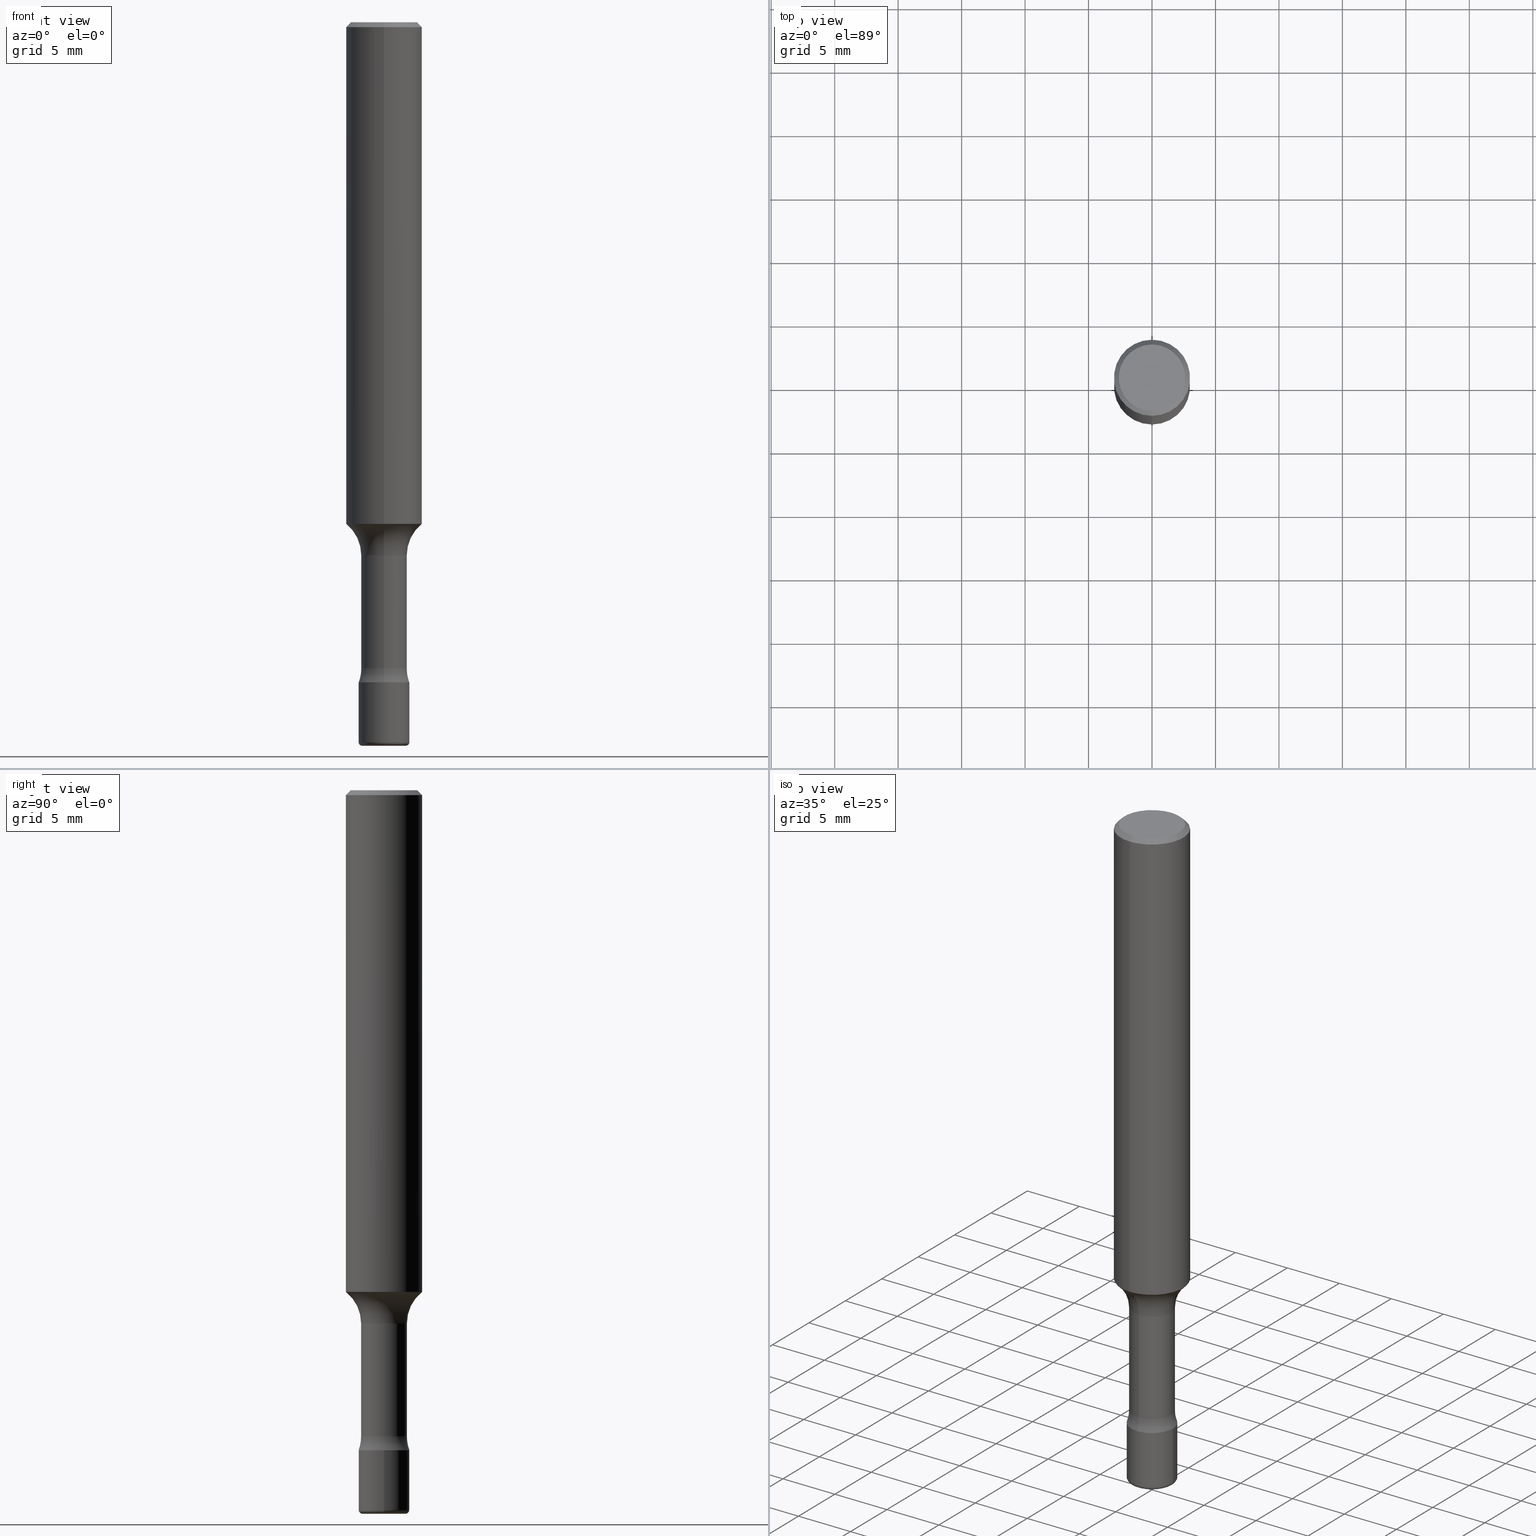
[diagram: canonical four-view strip — front | top / right | iso, engineering-drawing reading convention]
A machine part, canonical four-view strip (front | top / right | iso — engineering-drawing reading convention). The complete STEP part file that produces these views, byte-faithful:
ISO-10303-21;
HEADER;
FILE_DESCRIPTION (( 'STEP AP203' ),
    '1' );
FILE_NAME ('46561.STEP',
    '2024-03-04T12:38:47',
    ( '' ),
    ( '' ),
    'SwSTEP 2.0',
    'SolidWorks 2023',
    '' );
FILE_SCHEMA (( 'CONFIG_CONTROL_DESIGN' ));
ENDSEC;

DATA;
#1 = AXIS2_PLACEMENT_3D ( 'NONE', #417, #369, #49 ) ;
#2 = CARTESIAN_POINT ( 'NONE',  ( -4.957903501156845310E-16, -0.07100000000000578071, -1.653499999999999748 ) ) ;
#3 = ORIENTED_EDGE ( 'NONE', *, *, #216, .T. ) ;
#4 = CARTESIAN_POINT ( 'NONE',  ( 5.487876547960064752E-29, -7.835233272497900762E-15, -2.244099999999999540 ) ) ;
#5 = ORIENTED_EDGE ( 'NONE', *, *, #381, .T. ) ;
#6 = CARTESIAN_POINT ( 'NONE',  ( 4.042623480343631628E-29, -5.774538009429644609E-15, -1.653499999999999970 ) ) ;
#7 = DIRECTION ( 'NONE',  ( -2.445468806185136597E-29, 3.491481338843145583E-15, 1.000000000000000000 ) ) ;
#8 = DIRECTION ( 'NONE',  ( -1.000000000000000000, 7.105427357601038146E-15, 0.000000000000000000 ) ) ;
#9 = CARTESIAN_POINT ( 'NONE',  ( 4.042623480343631628E-29, -5.774538009429644609E-15, -1.653499999999999970 ) ) ;
#10 = CARTESIAN_POINT ( 'NONE',  ( 5.044853423896712842E-16, 0.07100000000000002143, 2.301192418489086903E-16 ) ) ;
#11 = CIRCLE ( 'NONE', #376, 0.01179999999999993381 ) ;
#12 =( NAMED_UNIT ( * ) SI_UNIT ( $, .STERADIAN. ) SOLID_ANGLE_UNIT ( ) );
#13 = APPROVAL_ROLE ( '' ) ;
#14 = DIRECTION ( 'NONE',  ( 1.000000000000000000, 0.000000000000000000, 0.000000000000000000 ) ) ;
#15 = CARTESIAN_POINT ( 'NONE',  ( 5.005176165079820518E-29, -7.149461271789760312E-15, -2.047200000000000131 ) ) ;
#16 = VECTOR ( 'NONE', #435, 39.37007874015748143 ) ;
#17 = DIRECTION ( 'NONE',  ( 0.000000000000000000, 0.000000000000000000, 1.000000000000000000 ) ) ;
#18 = DIRECTION ( 'NONE',  ( 7.105427357600999492E-15, 1.000000000000000000, 0.000000000000000000 ) ) ;
#19 = ORIENTED_EDGE ( 'NONE', *, *, #286, .F. ) ;
#20 = CARTESIAN_POINT ( 'NONE',  ( -1.169113584055446105E-44, 1.669184350826100908E-30, 4.780733988912460139E-16 ) ) ;
#21 = ORIENTED_EDGE ( 'NONE', *, *, #404, .T. ) ;
#22 = PERSON_AND_ORGANIZATION ( #496, #373 ) ;
#23 = CARTESIAN_POINT ( 'NONE',  ( 1.392663762089836453E-15, 0.1959999999999942066, -1.653500000000000858 ) ) ;
#24 = AXIS2_PLACEMENT_3D ( 'NONE', #308, #177, #412 ) ;
#25 = DIRECTION ( 'NONE',  ( -1.000000000000000000, 6.982962677686265922E-15, -4.883557194083112340E-29 ) ) ;
#26 = PRODUCT_DEFINITION_SHAPE ( 'NONE', 'NONE',  #336 ) ;
#27 = CARTESIAN_POINT ( 'NONE',  ( 3.803616507154480473E-29, -5.433137219098765341E-15, -1.555742187013006372 ) ) ;
#28 = ORIENTED_EDGE ( 'NONE', *, *, #212, .T. ) ;
#29 = FACE_OUTER_BOUND ( 'NONE', #517, .T. ) ;
#30 = APPROVAL_PERSON_ORGANIZATION ( #280, #391, #13 ) ;
#31 = ORIENTED_EDGE ( 'NONE', *, *, #312, .F. ) ;
#32 = DIRECTION ( 'NONE',  ( -2.444888709007337080E-29, 3.492312071018835321E-15, 1.000000000000000000 ) ) ;
#33 = ORIENTED_EDGE ( 'NONE', *, *, #94, .F. ) ;
#34 = DIRECTION ( 'NONE',  ( -6.982962677686265922E-15, -1.000000000000000000, 3.492312071018834927E-15 ) ) ;
#35 = AXIS2_PLACEMENT_3D ( 'NONE', #257, #219, #429 ) ;
#36 = ADVANCED_FACE ( 'NONE', ( #128 ), #287, .T. ) ;
#37 = LENGTH_MEASURE_WITH_UNIT ( LENGTH_MEASURE( 0.02539999999999999897 ), #295 );
#38 = ORIENTED_EDGE ( 'NONE', *, *, #137, .T. ) ;
#39 = CIRCLE ( 'NONE', #117, 0.1250000000000000000 ) ;
#40 = EDGE_CURVE ( 'NONE', #430, #504, #486, .T. ) ;
#41 = ORIENTED_EDGE ( 'NONE', *, *, #216, .F. ) ;
#42 = AXIS2_PLACEMENT_3D ( 'NONE', #333, #487, #368 ) ;
#43 = DIRECTION ( 'NONE',  ( -6.982962677686265922E-15, -1.000000000000000000, 3.847673230513046609E-15 ) ) ;
#44 = AXIS2_PLACEMENT_3D ( 'NONE', #353, #188, #401 ) ;
#45 = CIRCLE ( 'NONE', #290, 0.06694999999999998175 ) ;
#46 = LINE ( 'NONE', #254, #392 ) ;
#47 = CIRCLE ( 'NONE', #341, 0.01179999999999993381 ) ;
#48 = DIRECTION ( 'NONE',  ( -2.444888709007337080E-29, 3.492312071018835321E-15, 1.000000000000000000 ) ) ;
#49 = DIRECTION ( 'NONE',  ( -1.000000000000000000, 6.982962677686265922E-15, -4.876176775795935793E-29 ) ) ;
#50 = CARTESIAN_POINT ( 'NONE',  ( 4.900403027122825757E-29, -6.996476781358096065E-15, -2.003870593126607424 ) ) ;
#51 = AXIS2_PLACEMENT_3D ( 'NONE', #178, #431, #267 ) ;
#52 = DIRECTION ( 'NONE',  ( 1.000000000000000000, -6.982962677686257244E-15, 0.000000000000000000 ) ) ;
#53 = PERSON_AND_ORGANIZATION ( #496, #373 ) ;
#54 = ADVANCED_FACE ( 'NONE', ( #132 ), #142, .T. ) ;
#55 = APPROVAL_ROLE ( '' ) ;
#56 = DIRECTION ( 'NONE',  ( -2.445468806185136877E-29, 3.491481338843145188E-15, 1.000000000000000000 ) ) ;
#57 = CARTESIAN_POINT ( 'NONE',  ( 0.000000000000000000, 0.000000000000000000, 0.000000000000000000 ) ) ;
#58 = CARTESIAN_POINT ( 'NONE',  ( -8.102248135368174406E-16, -0.1181000000000000522, -0.01499999999999989189 ) ) ;
#59 = AXIS2_PLACEMENT_3D ( 'NONE', #9, #445, #326 ) ;
#60 = ORIENTED_EDGE ( 'NONE', *, *, #260, .F. ) ;
#61 = DIRECTION ( 'NONE',  ( -2.445468806185136597E-29, 3.491481338843145583E-15, 1.000000000000000000 ) ) ;
#62 = ORIENTED_EDGE ( 'NONE', *, *, #101, .T. ) ;
#63 = CALENDAR_DATE ( 2024, 4, 3 ) ;
#64 = DIRECTION ( 'NONE',  ( -6.982962677686265922E-15, -1.000000000000000000, 3.487819265831411744E-15 ) ) ;
#65 = COORDINATED_UNIVERSAL_TIME_OFFSET ( 5, 0, .BEHIND. ) ;
#66 = DIRECTION ( 'NONE',  ( 1.000000000000000000, -7.105427357601001070E-15, 4.926325682077081619E-29 ) ) ;
#67 = CIRCLE ( 'NONE', #411, 0.07875000000000000056 ) ;
#68 = FACE_OUTER_BOUND ( 'NONE', #77, .T. ) ;
#69 = CC_DESIGN_PERSON_AND_ORGANIZATION_ASSIGNMENT ( #250, #172, ( #258 ) ) ;
#70 = PLANE ( 'NONE',  #148 ) ;
#71 = APPLICATION_CONTEXT ( 'configuration controlled 3d designs of mechanical parts and assemblies' ) ;
#72 = EDGE_LOOP ( 'NONE', ( #221, #144 ) ) ;
#73 = PLANE ( 'NONE',  #44 ) ;
#74 = EDGE_CURVE ( 'NONE', #200, #461, #95, .T. ) ;
#75 = ORIENTED_EDGE ( 'NONE', *, *, #137, .F. ) ;
#76 = DIRECTION ( 'NONE',  ( 6.982962677686265922E-15, 1.000000000000000000, -3.487819265831411744E-15 ) ) ;
#77 = EDGE_LOOP ( 'NONE', ( #41, #409, #62, #457 ) ) ;
#78 = FACE_OUTER_BOUND ( 'NONE', #72, .T. ) ;
#79 = CIRCLE ( 'NONE', #310, 0.1250000000000000000 ) ;
#80 = ORIENTED_EDGE ( 'NONE', *, *, #362, .F. ) ;
#81 = DIRECTION ( 'NONE',  ( 1.000000000000000000, -6.982962677686261977E-15, 0.000000000000000000 ) ) ;
#82 = EDGE_CURVE ( 'NONE', #115, #240, #46, .T. ) ;
#83 = LINE ( 'NONE', #408, #379 ) ;
#84 = EDGE_LOOP ( 'NONE', ( #31, #315, #356, #259 ) ) ;
#85 = LOCAL_TIME ( 7, 38, 47.00000000000000000, #331 ) ;
#86 = DIRECTION ( 'NONE',  ( 6.982962677686265922E-15, 1.000000000000000000, -3.487819265831411744E-15 ) ) ;
#87 = PERSON_AND_ORGANIZATION_ROLE ( 'design_supplier' ) ;
#88 = ORIENTED_EDGE ( 'NONE', *, *, #377, .F. ) ;
#89 = AXIS2_PLACEMENT_3D ( 'NONE', #145, #102, #64 ) ;
#90 = DIRECTION ( 'NONE',  ( -2.444888709007337080E-29, 3.492312071018835321E-15, 1.000000000000000000 ) ) ;
#91 = COORDINATED_UNIVERSAL_TIME_OFFSET ( 5, 0, .BEHIND. ) ;
#92 = DIRECTION ( 'NONE',  ( -2.444888709007337080E-29, 3.492312071018835321E-15, 1.000000000000000000 ) ) ;
#93 = APPLICATION_PROTOCOL_DEFINITION ( 'international standard', 'config_control_design', 1994, #399 ) ;
#94 = EDGE_CURVE ( 'NONE', #115, #446, #67, .T. ) ;
#95 = CIRCLE ( 'NONE', #300, 0.06694999999999998175 ) ;
#96 = VECTOR ( 'NONE', #92, 39.37007874015748143 ) ;
#97 = PERSON_AND_ORGANIZATION ( #496, #373 ) ;
#98 = ORIENTED_EDGE ( 'NONE', *, *, #424, .T. ) ;
#99 = DIRECTION ( 'NONE',  ( -2.444888709007337080E-29, 3.492312071018835321E-15, 1.000000000000000000 ) ) ;
#100 = DIRECTION ( 'NONE',  ( -2.445468806185136597E-29, 3.491481338843145583E-15, 1.000000000000000000 ) ) ;
#101 = EDGE_CURVE ( 'NONE', #441, #122, #138, .T. ) ;
#102 = DIRECTION ( 'NONE',  ( -2.444888709007337080E-29, 3.492312071018835321E-15, 1.000000000000000000 ) ) ;
#103 =( GEOMETRIC_REPRESENTATION_CONTEXT ( 3 ) GLOBAL_UNCERTAINTY_ASSIGNED_CONTEXT ( ( #299 ) ) GLOBAL_UNIT_ASSIGNED_CONTEXT ( ( #195, #451, #12 ) ) REPRESENTATION_CONTEXT ( 'NONE', 'WORKASPACE' ) );
#104 = EDGE_LOOP ( 'NONE', ( #478, #38, #439, #327 ) ) ;
#105 = DIRECTION ( 'NONE',  ( -2.444888709007337080E-29, 3.492312071018835321E-15, 1.000000000000000000 ) ) ;
#106 = ORIENTED_EDGE ( 'NONE', *, *, #305, .F. ) ;
#107 = DIRECTION ( 'NONE',  ( -4.851104656540962697E-15, -0.7071067811865497932, -0.7071067811865452413 ) ) ;
#108 = CC_DESIGN_PERSON_AND_ORGANIZATION_ASSIGNMENT ( #97, #428, ( #506 ) ) ;
#109 = CALENDAR_DATE ( 2024, 4, 3 ) ;
#110 = CC_DESIGN_APPROVAL ( #359, ( #258 ) ) ;
#111 = AXIS2_PLACEMENT_3D ( 'NONE', #119, #116, #468 ) ;
#112 = ORIENTED_EDGE ( 'NONE', *, *, #407, .T. ) ;
#113 = CARTESIAN_POINT ( 'NONE',  ( 7.401769420960591620E-45, -1.058072037980263968E-30, -3.028580680983933068E-16 ) ) ;
#114 = ADVANCED_FACE ( 'NONE', ( #303 ), #455, .T. ) ;
#115 = VERTEX_POINT ( 'NONE', #426 ) ;
#116 = DIRECTION ( 'NONE',  ( -2.445468806185136597E-29, 3.491481338843145583E-15, 1.000000000000000000 ) ) ;
#117 = AXIS2_PLACEMENT_3D ( 'NONE', #146, #351, #507 ) ;
#118 = VERTEX_POINT ( 'NONE', #275 ) ;
#119 = CARTESIAN_POINT ( 'NONE',  ( 5.459020016047079569E-29, -7.794033792699553278E-15, -2.232299999999999951 ) ) ;
#120 = ADVANCED_FACE ( 'NONE', ( #440 ), #73, .F. ) ;
#121 = CIRCLE ( 'NONE', #477, 0.07100000000000000755 ) ;
#122 = VERTEX_POINT ( 'NONE', #406 ) ;
#123 = CARTESIAN_POINT ( 'NONE',  ( 5.459020016047079569E-29, -7.794033792699553278E-15, -2.232299999999999951 ) ) ;
#124 = ADVANCED_FACE ( 'NONE', ( #194 ), #338, .T. ) ;
#125 = ORIENTED_EDGE ( 'NONE', *, *, #375, .F. ) ;
#126 = DIRECTION ( 'NONE',  ( -2.445468806185136597E-29, 3.491481338843145583E-15, 1.000000000000000000 ) ) ;
#127 = DIMENSIONAL_EXPONENTS ( 1.000000000000000000, 0.000000000000000000, 0.000000000000000000, 0.000000000000000000, 0.000000000000000000, 0.000000000000000000, 0.000000000000000000 ) ;
#128 = FACE_OUTER_BOUND ( 'NONE', #382, .T. ) ;
#129 = APPROVAL_PERSON_ORGANIZATION ( #298, #519, #55 ) ;
#130 = DIRECTION ( 'NONE',  ( -6.982962677686265922E-15, -1.000000000000000000, 3.492312071018835321E-15 ) ) ;
#131 = DATE_AND_TIME ( #339, #85 ) ;
#132 = FACE_OUTER_BOUND ( 'NONE', #317, .T. ) ;
#133 = FACE_OUTER_BOUND ( 'NONE', #400, .T. ) ;
#134 = ADVANCED_FACE ( 'NONE', ( #475 ), #175, .F. ) ;
#135 = DATE_AND_TIME ( #493, #314 ) ;
#136 = AXIS2_PLACEMENT_3D ( 'NONE', #20, #143, #185 ) ;
#137 = EDGE_CURVE ( 'NONE', #446, #223, #316, .T. ) ;
#138 = CIRCLE ( 'NONE', #201, 0.07875000000000000056 ) ;
#139 = DIRECTION ( 'NONE',  ( -2.444888709007337080E-29, 3.492312071018835321E-15, 1.000000000000000000 ) ) ;
#140 = CARTESIAN_POINT ( 'NONE',  ( -4.957903501157250587E-16, -0.07100000000000002143, 7.260275559335834854E-16 ) ) ;
#141 = DIRECTION ( 'NONE',  ( -2.444888709007337080E-29, 3.492312071018835321E-15, 1.000000000000000000 ) ) ;
#142 = CYLINDRICAL_SURFACE ( 'NONE', #24, 0.07875000000000000056 ) ;
#143 = DIRECTION ( 'NONE',  ( -2.444888709007337080E-29, 3.492312071018835321E-15, 1.000000000000000000 ) ) ;
#144 = ORIENTED_EDGE ( 'NONE', *, *, #324, .T. ) ;
#145 = CARTESIAN_POINT ( 'NONE',  ( 3.667333063511079398E-31, -5.238468106528358615E-17, -0.01500000000000030302 ) ) ;
#146 = CARTESIAN_POINT ( 'NONE',  ( -1.368660684826459390E-15, -0.1960000000000070297, -2.003870593126606536 ) ) ;
#147 = CARTESIAN_POINT ( 'NONE',  ( -1.169113584055446105E-44, 1.669184350826100908E-30, 4.780733988912460139E-16 ) ) ;
#148 = AXIS2_PLACEMENT_3D ( 'NONE', #233, #241, #395 ) ;
#149 = ORIENTED_EDGE ( 'NONE', *, *, #215, .F. ) ;
#150 = DIRECTION ( 'NONE',  ( -2.444888709007337080E-29, 3.492312071018835321E-15, 1.000000000000000000 ) ) ;
#151 = TOROIDAL_SURFACE ( 'NONE', #488, 0.1960000000000000353, 0.1250000000000000278 ) ;
#152 = ORIENTED_EDGE ( 'NONE', *, *, #183, .F. ) ;
#153 = FACE_OUTER_BOUND ( 'NONE', #248, .T. ) ;
#154 = ADVANCED_FACE ( 'NONE', ( #78 ), #70, .T. ) ;
#155 = EDGE_LOOP ( 'NONE', ( #474, #274, #21, #191 ) ) ;
#156 = DIRECTION ( 'NONE',  ( -2.444888709007337080E-29, 3.492312071018835321E-15, 1.000000000000000000 ) ) ;
#157 = AXIS2_PLACEMENT_3D ( 'NONE', #113, #437, #34 ) ;
#158 = ORIENTED_EDGE ( 'NONE', *, *, #82, .T. ) ;
#159 = AXIS2_PLACEMENT_3D ( 'NONE', #481, #126, #330 ) ;
#160 = VERTEX_POINT ( 'NONE', #321 ) ;
#161 = FACE_OUTER_BOUND ( 'NONE', #155, .T. ) ;
#162 = ORIENTED_EDGE ( 'NONE', *, *, #260, .T. ) ;
#163 = CARTESIAN_POINT ( 'NONE',  ( 3.667333063511079398E-31, -5.238468106528358615E-17, -0.01500000000000030302 ) ) ;
#164 = EDGE_LOOP ( 'NONE', ( #152, #514 ) ) ;
#165 = CC_DESIGN_APPROVAL ( #391, ( #484 ) ) ;
#166 = CYLINDRICAL_SURFACE ( 'NONE', #42, 0.1180999999999999966 ) ;
#167 = ADVANCED_FACE ( 'NONE', ( #153 ), #509, .T. ) ;
#168 = CIRCLE ( 'NONE', #35, 0.1180999999999999966 ) ;
#169 = FACE_OUTER_BOUND ( 'NONE', #343, .T. ) ;
#170 = MECHANICAL_CONTEXT ( 'NONE', #399, 'mechanical' ) ;
#171 = ADVANCED_FACE ( 'NONE', ( #29 ), #512, .T. ) ;
#172 = PERSON_AND_ORGANIZATION_ROLE ( 'classification_officer' ) ;
#173 = CC_DESIGN_SECURITY_CLASSIFICATION ( #258, ( #484 ) ) ;
#174 = EDGE_CURVE ( 'NONE', #352, #283, #227, .T. ) ;
#175 = TOROIDAL_SURFACE ( 'NONE', #245, 0.1959999999999999798, 0.1250000000000000000 ) ;
#176 = DIRECTION ( 'NONE',  ( -2.444888709007337080E-29, 3.492312071018835321E-15, 1.000000000000000000 ) ) ;
#177 = DIRECTION ( 'NONE',  ( -2.445468806185136597E-29, 3.491481338843145583E-15, 1.000000000000000000 ) ) ;
#178 = CARTESIAN_POINT ( 'NONE',  ( 5.499083108678434384E-16, 0.07874999999999283962, -2.047200000000000131 ) ) ;
#179 = EDGE_LOOP ( 'NONE', ( #184, #497, #397, #244 ) ) ;
#180 = CONICAL_SURFACE ( 'NONE', #199, 0.1180999999999999966, 0.7853981633974480570 ) ;
#181 = APPLICATION_PROTOCOL_DEFINITION ( 'international standard', 'config_control_design', 1994, #71 ) ;
#182 = CARTESIAN_POINT ( 'NONE',  ( -1.368660684826467278E-15, -0.1960000000000057530, -1.653499999999999082 ) ) ;
#183 = EDGE_CURVE ( 'NONE', #122, #441, #296, .T. ) ;
#184 = ORIENTED_EDGE ( 'NONE', *, *, #286, .T. ) ;
#185 = DIRECTION ( 'NONE',  ( -6.982962677686265922E-15, -1.000000000000000000, 3.492312071018835716E-15 ) ) ;
#186 = ORIENTED_EDGE ( 'NONE', *, *, #40, .F. ) ;
#187 = AXIS2_PLACEMENT_3D ( 'NONE', #304, #388, #311 ) ;
#188 = DIRECTION ( 'NONE',  ( 2.444888709007336799E-29, -3.492312071018835321E-15, -1.000000000000000000 ) ) ;
#189 = ADVANCED_FACE ( 'NONE', ( #318 ), #180, .T. ) ;
#190 = CC_DESIGN_APPROVAL ( #519, ( #336 ) ) ;
#191 = ORIENTED_EDGE ( 'NONE', *, *, #212, .F. ) ;
#192 = DIRECTION ( 'NONE',  ( -6.982962677686264344E-15, -1.000000000000000000, 3.469013325287953293E-15 ) ) ;
#193 = VERTEX_POINT ( 'NONE', #238 ) ;
#194 = FACE_OUTER_BOUND ( 'NONE', #480, .T. ) ;
#195 =( CONVERSION_BASED_UNIT ( 'INCH', #37 ) LENGTH_UNIT ( ) NAMED_UNIT ( #127 ) );
#196 = ORIENTED_EDGE ( 'NONE', *, *, #324, .F. ) ;
#197 = CC_DESIGN_PERSON_AND_ORGANIZATION_ASSIGNMENT ( #294, #87, ( #484 ) ) ;
#198 = CARTESIAN_POINT ( 'NONE',  ( 4.043582671027123201E-29, -5.773164393777141072E-15, -1.653499999999999970 ) ) ;
#199 = AXIS2_PLACEMENT_3D ( 'NONE', #357, #278, #76 ) ;
#200 = VERTEX_POINT ( 'NONE', #361 ) ;
#201 = AXIS2_PLACEMENT_3D ( 'NONE', #15, #176, #340 ) ;
#202 = CARTESIAN_POINT ( 'NONE',  ( -4.957903501156761493E-16, -0.07100000000000704359, -2.003870593126606980 ) ) ;
#203 = CARTESIAN_POINT ( 'NONE',  ( 0.000000000000000000, 0.000000000000000000, 0.000000000000000000 ) ) ;
#204 = DIRECTION ( 'NONE',  ( 2.444888709007337080E-29, -3.492312071018835321E-15, -1.000000000000000000 ) ) ;
#205 = SECURITY_CLASSIFICATION_LEVEL ( 'unclassified' ) ;
#206 = DIRECTION ( 'NONE',  ( -2.444888709007337080E-29, 3.492312071018835321E-15, 1.000000000000000000 ) ) ;
#207 = ADVANCED_FACE ( 'NONE', ( #518 ), #229, .T. ) ;
#208 = DIRECTION ( 'NONE',  ( -6.982962677686265922E-15, -1.000000000000000000, 3.492312071018835321E-15 ) ) ;
#209 = PERSON_AND_ORGANIZATION ( #496, #373 ) ;
#210 = CARTESIAN_POINT ( 'NONE',  ( -8.246878922347479668E-16, -0.1180999999999999966, 8.905154544785705862E-16 ) ) ;
#211 = COORDINATED_UNIVERSAL_TIME_OFFSET ( 5, 0, .BEHIND. ) ;
#212 = EDGE_CURVE ( 'NONE', #118, #504, #345, .T. ) ;
#213 = AXIS2_PLACEMENT_3D ( 'NONE', #123, #479, #81 ) ;
#214 = SHAPE_DEFINITION_REPRESENTATION ( #26, #402 ) ;
#215 = EDGE_CURVE ( 'NONE', #160, #193, #364, .T. ) ;
#216 = EDGE_CURVE ( 'NONE', #329, #430, #277, .T. ) ;
#217 = DATE_AND_TIME ( #247, #458 ) ;
#218 = CARTESIAN_POINT ( 'NONE',  ( 5.459020016047079569E-29, -7.794033792699553278E-15, -2.232299999999999951 ) ) ;
#219 = DIRECTION ( 'NONE',  ( -2.444888709007337080E-29, 3.492312071018835321E-15, 1.000000000000000000 ) ) ;
#220 = APPROVAL_PERSON_ORGANIZATION ( #53, #359, #490 ) ;
#221 = ORIENTED_EDGE ( 'NONE', *, *, #232, .T. ) ;
#222 = DIRECTION ( 'NONE',  ( 1.000000000000000000, -6.982962677686261977E-15, 0.000000000000000000 ) ) ;
#223 = VERTEX_POINT ( 'NONE', #349 ) ;
#224 = DATE_AND_TIME ( #63, #427 ) ;
#225 = CARTESIAN_POINT ( 'NONE',  ( 8.246878922347483612E-16, 0.1180999999999999411, -0.01500000000000071589 ) ) ;
#226 = ADVANCED_FACE ( 'NONE', ( #342 ), #466, .F. ) ;
#227 = CIRCLE ( 'NONE', #157, 0.1031000000000000111 ) ;
#228 = ORIENTED_EDGE ( 'NONE', *, *, #358, .T. ) ;
#229 = CYLINDRICAL_SURFACE ( 'NONE', #136, 0.1180999999999999966 ) ;
#230 = EDGE_CURVE ( 'NONE', #430, #122, #39, .T. ) ;
#231 = CARTESIAN_POINT ( 'NONE',  ( 4.900403027122825757E-29, -6.996476781358096065E-15, -2.003870593126607424 ) ) ;
#232 = EDGE_CURVE ( 'NONE', #240, #223, #420, .T. ) ;
#233 = CARTESIAN_POINT ( 'NONE',  ( 5.006363740022211680E-29, -7.147760596879688202E-15, -2.047200000000000131 ) ) ;
#234 = DATE_AND_TIME ( #109, #269 ) ;
#235 = EDGE_LOOP ( 'NONE', ( #228, #281 ) ) ;
#236 = CARTESIAN_POINT ( 'NONE',  ( 5.005176165079820518E-29, -7.149461271789760312E-15, -2.047200000000000131 ) ) ;
#237 = EDGE_LOOP ( 'NONE', ( #320, #292, #363, #88 ) ) ;
#238 = CARTESIAN_POINT ( 'NONE',  ( 6.718181566612139372E-16, 0.07099999999999423439, -1.653500000000000192 ) ) ;
#239 = CIRCLE ( 'NONE', #335, 0.1031000000000000111 ) ;
#240 = VERTEX_POINT ( 'NONE', #385 ) ;
#241 = DIRECTION ( 'NONE',  ( -2.438088387897960049E-29, 3.491481338843145188E-15, 1.000000000000000000 ) ) ;
#242 = ORIENTED_EDGE ( 'NONE', *, *, #362, .T. ) ;
#243 = DIRECTION ( 'NONE',  ( -6.982962677686266711E-15, -1.000000000000000000, 3.491481338843145583E-15 ) ) ;
#244 = ORIENTED_EDGE ( 'NONE', *, *, #424, .F. ) ;
#245 = AXIS2_PLACEMENT_3D ( 'NONE', #282, #313, #442 ) ;
#246 = CARTESIAN_POINT ( 'NONE',  ( -8.102248135368174406E-16, -0.1181000000000000522, -0.01499999999999989189 ) ) ;
#247 = CALENDAR_DATE ( 2024, 4, 3 ) ;
#248 = EDGE_LOOP ( 'NONE', ( #389, #3, #423, #511 ) ) ;
#249 = CARTESIAN_POINT ( 'NONE',  ( 3.667333063511079398E-31, -5.238468106528358615E-17, -0.01500000000000030302 ) ) ;
#250 = PERSON_AND_ORGANIZATION ( #496, #373 ) ;
#251 = ADVANCED_FACE ( 'NONE', ( #68 ), #151, .F. ) ;
#252 = CLOSED_SHELL ( 'NONE', ( #207, #189, #251, #171, #462, #134, #167, #492, #226, #120, #467, #503 ) ) ;
#253 = CC_DESIGN_PERSON_AND_ORGANIZATION_ASSIGNMENT ( #209, #334, ( #484 ) ) ;
#254 = CARTESIAN_POINT ( 'NONE',  ( 0.07875000000000000056, -5.499083108677934443E-16, 3.839989210939299016E-30 ) ) ;
#255 = CARTESIAN_POINT ( 'NONE',  ( 1.392663762089845327E-15, 0.1959999999999930409, -2.003870593126608313 ) ) ;
#256 = DIRECTION ( 'NONE',  ( 1.000000000000000000, -6.982962677686265922E-15, 4.876176775795935232E-29 ) ) ;
#257 = CARTESIAN_POINT ( 'NONE',  ( 3.803616507154480473E-29, -5.433137219098765341E-15, -1.555742187013006372 ) ) ;
#258 = SECURITY_CLASSIFICATION ( '', '', #205 ) ;
#259 = ORIENTED_EDGE ( 'NONE', *, *, #271, .T. ) ;
#260 = EDGE_CURVE ( 'NONE', #430, #329, #403, .T. ) ;
#261 = PRODUCT_RELATED_PRODUCT_CATEGORY ( 'detail', '', ( #506 ) ) ;
#262 = DIRECTION ( 'NONE',  ( -6.982962677686265922E-15, -1.000000000000000000, 3.492312071018834927E-15 ) ) ;
#263 = AXIS2_PLACEMENT_3D ( 'NONE', #27, #139, #465 ) ;
#264 = CARTESIAN_POINT ( 'NONE',  ( 4.899240587447077474E-29, -6.998141461135724120E-15, -2.003870593126607424 ) ) ;
#265 = AXIS2_PLACEMENT_3D ( 'NONE', #23, #66, #18 ) ;
#266 = MANIFOLD_SOLID_BREP ( 'Body-Move/Copy2[2]', #252 ) ;
#267 = DIRECTION ( 'NONE',  ( -6.982962677686265922E-15, -1.000000000000000000, 3.492312071018835321E-15 ) ) ;
#268 = MANIFOLD_SOLID_BREP ( 'Body-Move/Copy2[1]', #279 ) ;
#269 = LOCAL_TIME ( 7, 38, 47.00000000000000000, #65 ) ;
#270 = AXIS2_PLACEMENT_3D ( 'NONE', #203, #100, #256 ) ;
#271 = EDGE_CURVE ( 'NONE', #360, #469, #273, .T. ) ;
#272 = VECTOR ( 'NONE', #293, 39.37007874015748143 ) ;
#273 = CIRCLE ( 'NONE', #89, 0.1180999999999999966 ) ;
#274 = ORIENTED_EDGE ( 'NONE', *, *, #215, .T. ) ;
#275 = CARTESIAN_POINT ( 'NONE',  ( -8.246878922347099042E-16, -0.1181000000000054229, -1.555742187013005928 ) ) ;
#276 = ORIENTED_EDGE ( 'NONE', *, *, #183, .T. ) ;
#277 = CIRCLE ( 'NONE', #434, 0.07100000000000003531 ) ;
#278 = DIRECTION ( 'NONE',  ( 2.444888709007337080E-29, -3.492312071018835321E-15, -1.000000000000000000 ) ) ;
#279 = CLOSED_SHELL ( 'NONE', ( #114, #453, #154, #36, #124, #54 ) ) ;
#280 = PERSON_AND_ORGANIZATION ( #496, #373 ) ;
#281 = ORIENTED_EDGE ( 'NONE', *, *, #174, .T. ) ;
#282 = CARTESIAN_POINT ( 'NONE',  ( 4.043582671027123201E-29, -5.773164393777141072E-15, -1.653499999999999970 ) ) ;
#283 = VERTEX_POINT ( 'NONE', #394 ) ;
#284 = DIRECTION ( 'NONE',  ( 7.105427357601001859E-15, 1.000000000000000000, -3.491481338843145583E-15 ) ) ;
#285 = LINE ( 'NONE', #10, #272 ) ;
#286 = EDGE_CURVE ( 'NONE', #118, #160, #489, .T. ) ;
#287 = PLANE ( 'NONE',  #1 ) ;
#288 = TOROIDAL_SURFACE ( 'NONE', #159, 0.06694999999999999563, 0.01179999999999993034 ) ;
#289 = LINE ( 'NONE', #210, #96 ) ;
#290 = AXIS2_PLACEMENT_3D ( 'NONE', #4, #522, #328 ) ;
#291 = APPROVAL_DATE_TIME ( #135, #359 ) ;
#292 = ORIENTED_EDGE ( 'NONE', *, *, #312, .T. ) ;
#293 = DIRECTION ( 'NONE',  ( -2.444888709007337080E-29, 3.492312071018835321E-15, 1.000000000000000000 ) ) ;
#294 = PERSON_AND_ORGANIZATION ( #496, #373 ) ;
#295 =( LENGTH_UNIT ( ) NAMED_UNIT ( * ) SI_UNIT ( $, .METRE. ) );
#296 = CIRCLE ( 'NONE', #438, 0.07875000000000000056 ) ;
#297 = AXIS2_PLACEMENT_3D ( 'NONE', #163, #204, #86 ) ;
#298 = PERSON_AND_ORGANIZATION ( #496, #373 ) ;
#299 = UNCERTAINTY_MEASURE_WITH_UNIT (LENGTH_MEASURE( 1.000000000000000082E-05 ), #195, 'distance_accuracy_value', 'NONE');
#300 = AXIS2_PLACEMENT_3D ( 'NONE', #371, #7, #332 ) ;
#301 = APPROVAL_STATUS ( 'not_yet_approved' ) ;
#302 = DIRECTION ( 'NONE',  ( 1.000000000000000000, -7.105427357601001070E-15, 4.926325682077081619E-29 ) ) ;
#303 = FACE_OUTER_BOUND ( 'NONE', #104, .T. ) ;
#304 = CARTESIAN_POINT ( 'NONE',  ( 5.006363740022211680E-29, -7.147760596879688202E-15, -2.047200000000000131 ) ) ;
#305 = EDGE_CURVE ( 'NONE', #329, #441, #79, .T. ) ;
#306 = DIRECTION ( 'NONE',  ( 1.000000000000000000, -6.982962677686261977E-15, 0.000000000000000000 ) ) ;
#307 = DIRECTION ( 'NONE',  ( 7.105427357601001859E-15, 1.000000000000000000, 0.000000000000000000 ) ) ;
#308 = CARTESIAN_POINT ( 'NONE',  ( 0.000000000000000000, 0.000000000000000000, 0.000000000000000000 ) ) ;
#309 = AXIS2_PLACEMENT_3D ( 'NONE', #198, #48, #130 ) ;
#310 = AXIS2_PLACEMENT_3D ( 'NONE', #255, #302, #307 ) ;
#311 = DIRECTION ( 'NONE',  ( 1.000000000000000000, -6.982962677686261977E-15, 0.000000000000000000 ) ) ;
#312 = EDGE_CURVE ( 'NONE', #352, #469, #425, .T. ) ;
#313 = DIRECTION ( 'NONE',  ( -2.444888709007337080E-29, 3.492312071018835321E-15, 1.000000000000000000 ) ) ;
#314 = LOCAL_TIME ( 7, 38, 47.00000000000000000, #211 ) ;
#315 = ORIENTED_EDGE ( 'NONE', *, *, #358, .F. ) ;
#316 = LINE ( 'NONE', #515, #16 ) ;
#317 = EDGE_LOOP ( 'NONE', ( #75, #5, #158, #196 ) ) ;
#318 = FACE_OUTER_BOUND ( 'NONE', #237, .T. ) ;
#319 = EDGE_CURVE ( 'NONE', #160, #118, #168, .T. ) ;
#320 = ORIENTED_EDGE ( 'NONE', *, *, #174, .F. ) ;
#321 = CARTESIAN_POINT ( 'NONE',  ( 8.391509709327163582E-16, 0.1180999999999945704, -1.555742187013007038 ) ) ;
#322 = AXIS2_PLACEMENT_3D ( 'NONE', #249, #450, #444 ) ;
#323 = ORIENTED_EDGE ( 'NONE', *, *, #271, .F. ) ;
#324 = EDGE_CURVE ( 'NONE', #223, #240, #463, .T. ) ;
#325 = LINE ( 'NONE', #483, #460 ) ;
#326 = DIRECTION ( 'NONE',  ( -6.982962677686265922E-15, -1.000000000000000000, 3.847673230513046609E-15 ) ) ;
#327 = ORIENTED_EDGE ( 'NONE', *, *, #82, .F. ) ;
#328 = DIRECTION ( 'NONE',  ( 1.000000000000000000, -6.982962677686270655E-15, 0.000000000000000000 ) ) ;
#329 = VERTEX_POINT ( 'NONE', #344 ) ;
#330 = DIRECTION ( 'NONE',  ( 1.000000000000000000, -6.982962677686268288E-15, 4.883557194083113462E-29 ) ) ;
#331 = COORDINATED_UNIVERSAL_TIME_OFFSET ( 5, 0, .BEHIND. ) ;
#332 = DIRECTION ( 'NONE',  ( 1.000000000000000000, -6.982962677686270655E-15, 0.000000000000000000 ) ) ;
#333 = CARTESIAN_POINT ( 'NONE',  ( -1.169113584055446105E-44, 1.669184350826100908E-30, 4.780733988912460139E-16 ) ) ;
#334 = PERSON_AND_ORGANIZATION_ROLE ( 'creator' ) ;
#335 = AXIS2_PLACEMENT_3D ( 'NONE', #459, #105, #262 ) ;
#336 = PRODUCT_DEFINITION ( 'UNKNOWN', '', #484, #521 ) ;
#337 = CIRCLE ( 'NONE', #59, 0.07100000000000000755 ) ;
#338 = TOROIDAL_SURFACE ( 'NONE', #111, 0.06694999999999999563, 0.01179999999999993034 ) ;
#339 = CALENDAR_DATE ( 2024, 4, 3 ) ;
#340 = DIRECTION ( 'NONE',  ( -6.982962677686264344E-15, -1.000000000000000000, 3.469013325287953293E-15 ) ) ;
#341 = AXIS2_PLACEMENT_3D ( 'NONE', #374, #284, #8 ) ;
#342 = FACE_OUTER_BOUND ( 'NONE', #164, .T. ) ;
#343 = EDGE_LOOP ( 'NONE', ( #106, #60, #405, #276 ) ) ;
#344 = CARTESIAN_POINT ( 'NONE',  ( 5.044853423897160521E-16, 0.07099999999999305478, -2.003870593126607869 ) ) ;
#345 = CIRCLE ( 'NONE', #491, 0.1250000000000000000 ) ;
#346 = ORIENTED_EDGE ( 'NONE', *, *, #375, .T. ) ;
#347 = DIRECTION ( 'NONE',  ( -6.982962677686266711E-15, -1.000000000000000000, 3.847673230513045031E-15 ) ) ;
#348 = VECTOR ( 'NONE', #206, 39.37007874015748143 ) ;
#349 = CARTESIAN_POINT ( 'NONE',  ( -0.07875000000000000056, -6.911344790378541938E-15, -2.047200000000000131 ) ) ;
#350 = CC_DESIGN_DATE_AND_TIME_ASSIGNMENT ( #234, #396, ( #336 ) ) ;
#351 = DIRECTION ( 'NONE',  ( -1.000000000000000000, 6.982962677686265922E-15, -4.883557194083112340E-29 ) ) ;
#352 = VERTEX_POINT ( 'NONE', #501 ) ;
#353 = CARTESIAN_POINT ( 'NONE',  ( 7.199434520694541042E-16, 0.1031000000000000111, -2.724497091256156002E-16 ) ) ;
#354 = AXIS2_PLACEMENT_3D ( 'NONE', #57, #17, #14 ) ;
#355 = TOROIDAL_SURFACE ( 'NONE', #309, 0.1959999999999999798, 0.1250000000000000000 ) ;
#356 = ORIENTED_EDGE ( 'NONE', *, *, #377, .T. ) ;
#357 = CARTESIAN_POINT ( 'NONE',  ( 3.667333063511079398E-31, -5.238468106528358615E-17, -0.01500000000000030302 ) ) ;
#358 = EDGE_CURVE ( 'NONE', #283, #352, #239, .T. ) ;
#359 = APPROVAL ( #301, 'UNSPECIFIED' ) ;
#360 = VERTEX_POINT ( 'NONE', #225 ) ;
#361 = CARTESIAN_POINT ( 'NONE',  ( -0.06694999999999998175, -7.297003149597495823E-15, -2.244099999999999540 ) ) ;
#362 = EDGE_CURVE ( 'NONE', #461, #115, #11, .T. ) ;
#363 = ORIENTED_EDGE ( 'NONE', *, *, #422, .T. ) ;
#364 = CIRCLE ( 'NONE', #265, 0.1250000000000000000 ) ;
#365 = DIRECTION ( 'NONE',  ( -2.444888709007337080E-29, 3.492312071018835321E-15, 1.000000000000000000 ) ) ;
#366 = EDGE_LOOP ( 'NONE', ( #149, #19, #28, #443 ) ) ;
#367 = CARTESIAN_POINT ( 'NONE',  ( -0.07874999999999995892, -7.234481388288473687E-15, -2.232299999999999951 ) ) ;
#368 = DIRECTION ( 'NONE',  ( -6.982962677686265922E-15, -1.000000000000000000, 3.492312071018835716E-15 ) ) ;
#369 = DIRECTION ( 'NONE',  ( 2.438088387897960049E-29, -3.491481338843145188E-15, -1.000000000000000000 ) ) ;
#370 = DATE_TIME_ROLE ( 'classification_date' ) ;
#371 = CARTESIAN_POINT ( 'NONE',  ( 5.487876547960064752E-29, -7.835233272497900762E-15, -2.244099999999999540 ) ) ;
#372 = FACE_OUTER_BOUND ( 'NONE', #84, .T. ) ;
#373 = ORGANIZATION ( 'UNSPECIFIED', 'UNSPECIFIED', '' ) ;
#374 = CARTESIAN_POINT ( 'NONE',  ( -0.06694999999999999563, -7.318325431108165741E-15, -2.232299999999999951 ) ) ;
#375 = EDGE_CURVE ( 'NONE', #200, #446, #47, .T. ) ;
#376 = AXIS2_PLACEMENT_3D ( 'NONE', #505, #243, #52 ) ;
#377 = EDGE_CURVE ( 'NONE', #283, #360, #325, .T. ) ;
#378 = DIRECTION ( 'NONE',  ( -2.445468806185136597E-29, 3.491481338843145583E-15, 1.000000000000000000 ) ) ;
#379 = VECTOR ( 'NONE', #416, 39.37007874015748143 ) ;
#380 = CARTESIAN_POINT ( 'NONE',  ( 5.006363740022211680E-29, -7.147760596879688202E-15, -2.047200000000000131 ) ) ;
#381 = EDGE_CURVE ( 'NONE', #446, #115, #495, .T. ) ;
#382 = EDGE_LOOP ( 'NONE', ( #472, #386 ) ) ;
#383 = VECTOR ( 'NONE', #107, 39.37007874015748143 ) ;
#384 = APPROVAL_STATUS ( 'not_yet_approved' ) ;
#385 = CARTESIAN_POINT ( 'NONE',  ( 0.07875000000000000056, -7.697668907747481548E-15, -2.047200000000000131 ) ) ;
#386 = ORIENTED_EDGE ( 'NONE', *, *, #74, .F. ) ;
#387 = APPROVAL_DATE_TIME ( #224, #519 ) ;
#388 = DIRECTION ( 'NONE',  ( -2.445468806185136597E-29, 3.491481338843145583E-15, 1.000000000000000000 ) ) ;
#389 = ORIENTED_EDGE ( 'NONE', *, *, #407, .F. ) ;
#390 = DIRECTION ( 'NONE',  ( -6.982962677686266711E-15, -1.000000000000000000, 0.000000000000000000 ) ) ;
#391 = APPROVAL ( #415, 'UNSPECIFIED' ) ;
#392 = VECTOR ( 'NONE', #56, 39.37007874015748143 ) ;
#393 = CIRCLE ( 'NONE', #322, 0.1180999999999999966 ) ;
#394 = CARTESIAN_POINT ( 'NONE',  ( 7.723156721521011834E-16, 0.1031000000000000111, -6.629154426204352605E-16 ) ) ;
#395 = DIRECTION ( 'NONE',  ( 1.000000000000000000, -6.982962677686265922E-15, 4.876176775795935793E-29 ) ) ;
#396 = DATE_TIME_ROLE ( 'creation_date' ) ;
#397 = ORIENTED_EDGE ( 'NONE', *, *, #422, .F. ) ;
#398 = DIRECTION ( 'NONE',  ( -6.982962677686266711E-15, -1.000000000000000000, 3.492312071018835716E-15 ) ) ;
#399 = APPLICATION_CONTEXT ( 'configuration controlled 3d designs of mechanical parts and assemblies' ) ;
#400 = EDGE_LOOP ( 'NONE', ( #448, #346, #33, #80 ) ) ;
#401 = DIRECTION ( 'NONE',  ( 6.982962677686265922E-15, 1.000000000000000000, -3.492312071018835321E-15 ) ) ;
#402 = ADVANCED_BREP_SHAPE_REPRESENTATION ( '46561', ( #268, #266, #354 ), #103 ) ;
#403 = CIRCLE ( 'NONE', #471, 0.07100000000000003531 ) ;
#404 = EDGE_CURVE ( 'NONE', #193, #504, #121, .T. ) ;
#405 = ORIENTED_EDGE ( 'NONE', *, *, #230, .T. ) ;
#406 = CARTESIAN_POINT ( 'NONE',  ( -5.499083108677432530E-16, -0.07875000000000714762, -2.047199999999999243 ) ) ;
#407 = EDGE_CURVE ( 'NONE', #329, #193, #285, .T. ) ;
#408 = CARTESIAN_POINT ( 'NONE',  ( 8.391509709326781971E-16, 0.1180999999999999966, 6.563134330392160184E-17 ) ) ;
#409 = ORIENTED_EDGE ( 'NONE', *, *, #305, .T. ) ;
#410 = CARTESIAN_POINT ( 'NONE',  ( 5.595524044111288944E-16, 0.07874999999999283962, -2.047200000000000575 ) ) ;
#411 = AXIS2_PLACEMENT_3D ( 'NONE', #218, #378, #306 ) ;
#412 = DIRECTION ( 'NONE',  ( 1.000000000000000000, -6.982962677686265922E-15, 4.876176775795935232E-29 ) ) ;
#413 = DIRECTION ( 'NONE',  ( 4.937700262164546464E-15, 0.7071067811865449082, -0.7071067811865501263 ) ) ;
#414 = CONICAL_SURFACE ( 'NONE', #297, 0.1180999999999999966, 0.7853981633974480570 ) ;
#415 = APPROVAL_STATUS ( 'not_yet_approved' ) ;
#416 = DIRECTION ( 'NONE',  ( -2.444888709007337080E-29, 3.492312071018835321E-15, 1.000000000000000000 ) ) ;
#417 = CARTESIAN_POINT ( 'NONE',  ( 4.675093512711502448E-16, 0.06694999999999215468, -2.244099999999999984 ) ) ;
#418 = FACE_OUTER_BOUND ( 'NONE', #449, .T. ) ;
#419 = EDGE_CURVE ( 'NONE', #461, #200, #45, .T. ) ;
#420 = CIRCLE ( 'NONE', #187, 0.07875000000000000056 ) ;
#421 = CARTESIAN_POINT ( 'NONE',  ( 0.06694999999999998175, -8.302742623768997561E-15, -2.244099999999999540 ) ) ;
#422 = EDGE_CURVE ( 'NONE', #469, #360, #393, .T. ) ;
#423 = ORIENTED_EDGE ( 'NONE', *, *, #40, .T. ) ;
#424 = EDGE_CURVE ( 'NONE', #118, #469, #289, .T. ) ;
#425 = LINE ( 'NONE', #58, #383 ) ;
#426 = CARTESIAN_POINT ( 'NONE',  ( 0.07874999999999995892, -8.343942103567346623E-15, -2.232299999999999951 ) ) ;
#427 = LOCAL_TIME ( 7, 38, 47.00000000000000000, #500 ) ;
#428 = PERSON_AND_ORGANIZATION_ROLE ( 'design_owner' ) ;
#429 = DIRECTION ( 'NONE',  ( -6.982962677686265922E-15, -1.000000000000000000, 4.626330217890369336E-15 ) ) ;
#430 = VERTEX_POINT ( 'NONE', #202 ) ;
#431 = DIRECTION ( 'NONE',  ( -2.444888709007336799E-29, 3.492312071018835321E-15, 1.000000000000000000 ) ) ;
#432 = ORIENTED_EDGE ( 'NONE', *, *, #381, .F. ) ;
#433 = CARTESIAN_POINT ( 'NONE',  ( 4.899240587447077474E-29, -6.998141461135724120E-15, -2.003870593126607424 ) ) ;
#434 = AXIS2_PLACEMENT_3D ( 'NONE', #264, #141, #498 ) ;
#435 = DIRECTION ( 'NONE',  ( -2.445468806185136877E-29, 3.491481338843145188E-15, 1.000000000000000000 ) ) ;
#436 = ORIENTED_EDGE ( 'NONE', *, *, #508, .F. ) ;
#437 = DIRECTION ( 'NONE',  ( -2.444888709007337080E-29, 3.492312071018835321E-15, 1.000000000000000000 ) ) ;
#438 = AXIS2_PLACEMENT_3D ( 'NONE', #236, #32, #192 ) ;
#439 = ORIENTED_EDGE ( 'NONE', *, *, #232, .F. ) ;
#440 = FACE_OUTER_BOUND ( 'NONE', #235, .T. ) ;
#441 = VERTEX_POINT ( 'NONE', #410 ) ;
#442 = DIRECTION ( 'NONE',  ( -6.982962677686265922E-15, -1.000000000000000000, 3.492312071018835321E-15 ) ) ;
#443 = ORIENTED_EDGE ( 'NONE', *, *, #508, .T. ) ;
#444 = DIRECTION ( 'NONE',  ( -6.982962677686265922E-15, -1.000000000000000000, 3.487819265831411744E-15 ) ) ;
#445 = DIRECTION ( 'NONE',  ( -2.444888709007337080E-29, 3.492312071018835321E-15, 1.000000000000000000 ) ) ;
#446 = VERTEX_POINT ( 'NONE', #367 ) ;
#447 = AXIS2_PLACEMENT_3D ( 'NONE', #50, #365, #208 ) ;
#448 = ORIENTED_EDGE ( 'NONE', *, *, #419, .T. ) ;
#449 = EDGE_LOOP ( 'NONE', ( #499, #520, #98, #323 ) ) ;
#450 = DIRECTION ( 'NONE',  ( -2.444888709007337080E-29, 3.492312071018835321E-15, 1.000000000000000000 ) ) ;
#451 =( NAMED_UNIT ( * ) PLANE_ANGLE_UNIT ( ) SI_UNIT ( $, .RADIAN. ) );
#452 = AXIS2_PLACEMENT_3D ( 'NONE', #473, #156, #470 ) ;
#453 = ADVANCED_FACE ( 'NONE', ( #133 ), #288, .T. ) ;
#454 = DIRECTION ( 'NONE',  ( -2.444888709007337080E-29, 3.492312071018835321E-15, 1.000000000000000000 ) ) ;
#455 = CYLINDRICAL_SURFACE ( 'NONE', #270, 0.07875000000000000056 ) ;
#456 = DIRECTION ( 'NONE',  ( -6.982962677686265922E-15, -1.000000000000000000, 3.492312071018835321E-15 ) ) ;
#457 = ORIENTED_EDGE ( 'NONE', *, *, #230, .F. ) ;
#458 = LOCAL_TIME ( 7, 38, 47.00000000000000000, #91 ) ;
#459 = CARTESIAN_POINT ( 'NONE',  ( 7.401769420960591620E-45, -1.058072037980263968E-30, -3.028580680983933068E-16 ) ) ;
#460 = VECTOR ( 'NONE', #413, 39.37007874015748143 ) ;
#461 = VERTEX_POINT ( 'NONE', #421 ) ;
#462 = ADVANCED_FACE ( 'NONE', ( #161 ), #355, .F. ) ;
#463 = CIRCLE ( 'NONE', #516, 0.07875000000000000056 ) ;
#464 = PERSON_AND_ORGANIZATION_ROLE ( 'creator' ) ;
#465 = DIRECTION ( 'NONE',  ( -6.982962677686265922E-15, -1.000000000000000000, 4.626330217890369336E-15 ) ) ;
#466 = PLANE ( 'NONE',  #51 ) ;
#467 = ADVANCED_FACE ( 'NONE', ( #372 ), #414, .T. ) ;
#468 = DIRECTION ( 'NONE',  ( 1.000000000000000000, -6.982962677686268288E-15, 4.883557194083113462E-29 ) ) ;
#469 = VERTEX_POINT ( 'NONE', #246 ) ;
#470 = DIRECTION ( 'NONE',  ( -6.982962677686266711E-15, -1.000000000000000000, 3.492312071018835716E-15 ) ) ;
#471 = AXIS2_PLACEMENT_3D ( 'NONE', #433, #454, #347 ) ;
#472 = ORIENTED_EDGE ( 'NONE', *, *, #419, .F. ) ;
#473 = CARTESIAN_POINT ( 'NONE',  ( -1.169113584055446105E-44, 1.669184350826100908E-30, 4.780733988912460139E-16 ) ) ;
#474 = ORIENTED_EDGE ( 'NONE', *, *, #319, .F. ) ;
#475 = FACE_OUTER_BOUND ( 'NONE', #366, .T. ) ;
#476 = CC_DESIGN_PERSON_AND_ORGANIZATION_ASSIGNMENT ( #22, #464, ( #336 ) ) ;
#477 = AXIS2_PLACEMENT_3D ( 'NONE', #6, #90, #43 ) ;
#478 = ORIENTED_EDGE ( 'NONE', *, *, #94, .T. ) ;
#479 = DIRECTION ( 'NONE',  ( -2.445468806185136597E-29, 3.491481338843145583E-15, 1.000000000000000000 ) ) ;
#480 = EDGE_LOOP ( 'NONE', ( #125, #482, #242, #432 ) ) ;
#481 = CARTESIAN_POINT ( 'NONE',  ( 5.459020016047079569E-29, -7.794033792699553278E-15, -2.232299999999999951 ) ) ;
#482 = ORIENTED_EDGE ( 'NONE', *, *, #74, .T. ) ;
#483 = CARTESIAN_POINT ( 'NONE',  ( 8.246878922347483612E-16, 0.1180999999999999411, -0.01500000000000071589 ) ) ;
#484 = PRODUCT_DEFINITION_FORMATION_WITH_SPECIFIED_SOURCE ( 'ANY', '', #506, .NOT_KNOWN. ) ;
#485 = APPROVAL_DATE_TIME ( #131, #391 ) ;
#486 = LINE ( 'NONE', #140, #348 ) ;
#487 = DIRECTION ( 'NONE',  ( -2.444888709007337080E-29, 3.492312071018835321E-15, 1.000000000000000000 ) ) ;
#488 = AXIS2_PLACEMENT_3D ( 'NONE', #231, #99, #456 ) ;
#489 = CIRCLE ( 'NONE', #263, 0.1180999999999999966 ) ;
#490 = APPROVAL_ROLE ( '' ) ;
#491 = AXIS2_PLACEMENT_3D ( 'NONE', #182, #25, #390 ) ;
#492 = ADVANCED_FACE ( 'NONE', ( #169 ), #513, .F. ) ;
#493 = CALENDAR_DATE ( 2024, 4, 3 ) ;
#494 = CC_DESIGN_DATE_AND_TIME_ASSIGNMENT ( #217, #370, ( #258 ) ) ;
#495 = CIRCLE ( 'NONE', #213, 0.07875000000000000056 ) ;
#496 = PERSON ( 'UNSPECIFIED', 'UNSPECIFIED', 'UNSPECIFIED', ('UNSPECIFIED'), ('UNSPECIFIED'), ('UNSPECIFIED') ) ;
#497 = ORIENTED_EDGE ( 'NONE', *, *, #510, .T. ) ;
#498 = DIRECTION ( 'NONE',  ( -6.982962677686266711E-15, -1.000000000000000000, 3.847673230513045031E-15 ) ) ;
#499 = ORIENTED_EDGE ( 'NONE', *, *, #510, .F. ) ;
#500 = COORDINATED_UNIVERSAL_TIME_OFFSET ( 5, 0, .BEHIND. ) ;
#501 = CARTESIAN_POINT ( 'NONE',  ( -7.587710785535310407E-16, -0.1031000000000000111, 5.719930642364859767E-17 ) ) ;
#502 = AXIS2_PLACEMENT_3D ( 'NONE', #147, #150, #398 ) ;
#503 = ADVANCED_FACE ( 'NONE', ( #418 ), #166, .T. ) ;
#504 = VERTEX_POINT ( 'NONE', #2 ) ;
#505 = CARTESIAN_POINT ( 'NONE',  ( 0.06694999999999999563, -8.261543143970648500E-15, -2.232299999999999951 ) ) ;
#506 = PRODUCT ( '46561', '46561', '', ( #170 ) ) ;
#507 = DIRECTION ( 'NONE',  ( -6.982962677686269077E-15, -1.000000000000000000, 0.000000000000000000 ) ) ;
#508 = EDGE_CURVE ( 'NONE', #504, #193, #337, .T. ) ;
#509 = CYLINDRICAL_SURFACE ( 'NONE', #502, 0.07100000000000002143 ) ;
#510 = EDGE_CURVE ( 'NONE', #160, #360, #83, .T. ) ;
#511 = ORIENTED_EDGE ( 'NONE', *, *, #404, .F. ) ;
#512 = CYLINDRICAL_SURFACE ( 'NONE', #452, 0.07100000000000002143 ) ;
#513 = TOROIDAL_SURFACE ( 'NONE', #447, 0.1960000000000000353, 0.1250000000000000278 ) ;
#514 = ORIENTED_EDGE ( 'NONE', *, *, #101, .F. ) ;
#515 = CARTESIAN_POINT ( 'NONE',  ( -0.07875000000000000056, 5.595524044110789003E-16, -3.873661383575737792E-30 ) ) ;
#516 = AXIS2_PLACEMENT_3D ( 'NONE', #380, #61, #222 ) ;
#517 = EDGE_LOOP ( 'NONE', ( #162, #112, #436, #186 ) ) ;
#518 = FACE_OUTER_BOUND ( 'NONE', #179, .T. ) ;
#519 = APPROVAL ( #384, 'UNSPECIFIED' ) ;
#520 = ORIENTED_EDGE ( 'NONE', *, *, #319, .T. ) ;
#521 = DESIGN_CONTEXT ( 'detailed design', #71, 'design' ) ;
#522 = DIRECTION ( 'NONE',  ( -2.445468806185136597E-29, 3.491481338843145583E-15, 1.000000000000000000 ) ) ;
ENDSEC;
END-ISO-10303-21;
